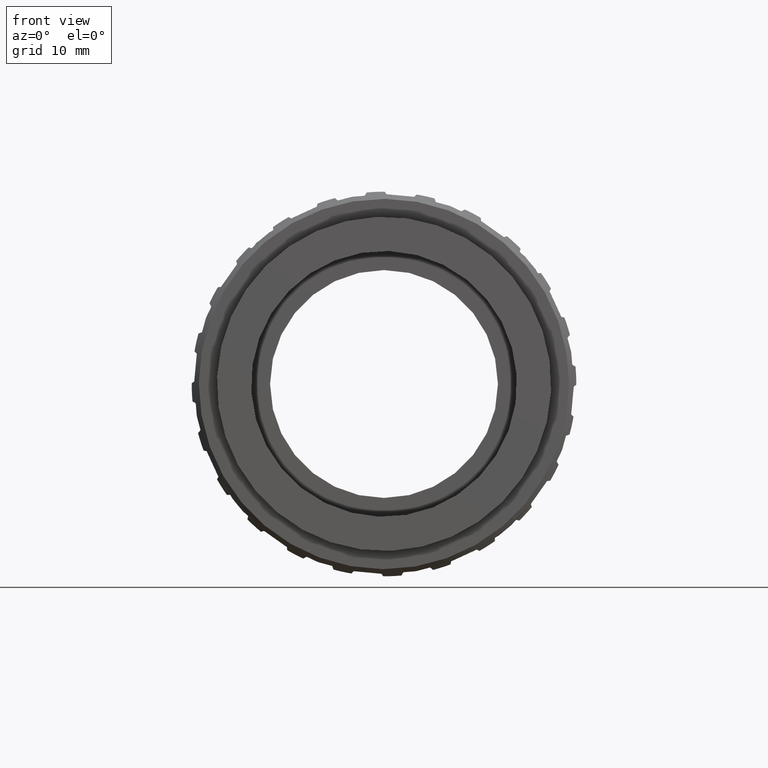
[diagram: clean part render]
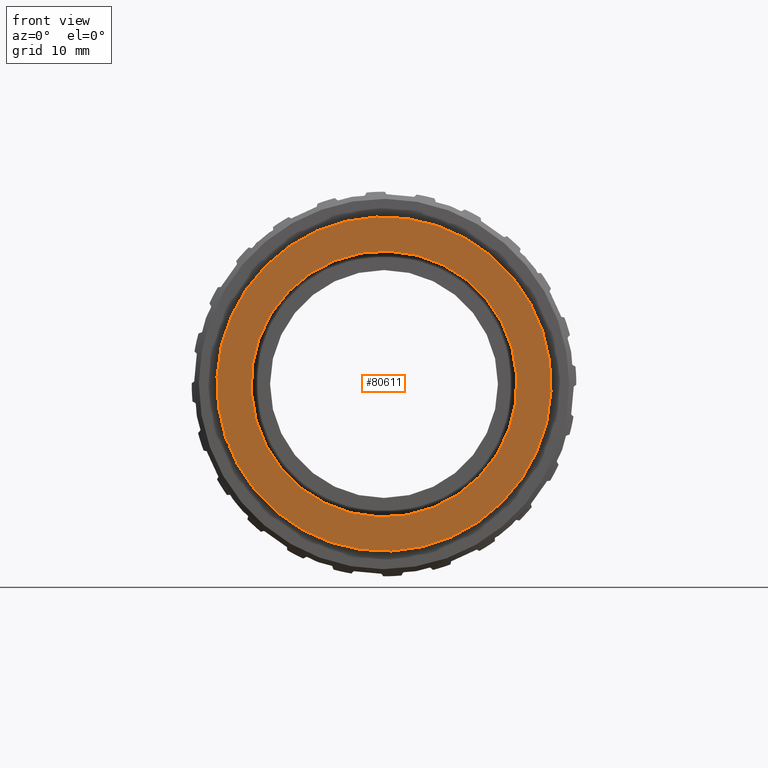
[diagram: same view with one face highlighted and labeled with its STEP entity id]
A machine part, front view. The second image highlights one B-rep face of the part: STEP entity #80611.
In plain terms, the highlighted planar face has unit normal (0, 1, 0).
Its self-contained STEP definition (entity closure, byte-faithful):
#1204 = AXIS2_PLACEMENT_3D ( 'NONE', #49712, #66918, #17881 ) ;
#3859 = CIRCLE ( 'NONE', #16191, 14.00000000000000500 ) ;
#4697 = FACE_BOUND ( 'NONE', #98621, .T. ) ;
#6945 = EDGE_CURVE ( 'NONE', #25935, #51218, #67545, .T. ) ;
#9484 = AXIS2_PLACEMENT_3D ( 'NONE', #94358, #26999, #9787 ) ;
#9787 = DIRECTION ( 'NONE',  ( 0.0000000000000000000, 0.0000000000000000000, 1.000000000000000000 ) ) ;
#10047 = CARTESIAN_POINT ( 'NONE',  ( 1.714505518806295000E-015, -14.79999999999999400, -14.00000000000000500 ) ) ;
#13860 = CARTESIAN_POINT ( 'NONE',  ( 0.0000000000000000000, -14.79999999999999400, 0.0000000000000000000 ) ) ;
#13930 = DIRECTION ( 'NONE',  ( -0.0000000000000000000, 1.000000000000000000, -0.0000000000000000000 ) ) ;
#14216 = DIRECTION ( 'NONE',  ( -0.0000000000000000000, 1.000000000000000000, -0.0000000000000000000 ) ) ;
#16191 = AXIS2_PLACEMENT_3D ( 'NONE', #67666, #51921, #18634 ) ;
#16437 = FACE_OUTER_BOUND ( 'NONE', #24139, .T. ) ;
#17290 = ORIENTED_EDGE ( 'NONE', *, *, #6945, .F. ) ;
#17881 = DIRECTION ( 'NONE',  ( 0.0000000000000000000, 0.0000000000000000000, 1.000000000000000000 ) ) ;
#18634 = DIRECTION ( 'NONE',  ( 0.0000000000000000000, 0.0000000000000000000, 1.000000000000000000 ) ) ;
#19513 = EDGE_CURVE ( 'NONE', #51218, #25935, #87207, .T. ) ;
#24139 = EDGE_LOOP ( 'NONE', ( #17290, #49946 ) ) ;
#24866 = PLANE ( 'NONE',  #1204 ) ;
#25935 = VERTEX_POINT ( 'NONE', #28997 ) ;
#26999 = DIRECTION ( 'NONE',  ( -0.0000000000000000000, 1.000000000000000000, -0.0000000000000000000 ) ) ;
#28997 = CARTESIAN_POINT ( 'NONE',  ( 0.0000000000000000000, -14.79999999999999400, 17.60000000000000900 ) ) ;
#30335 = DIRECTION ( 'NONE',  ( 0.0000000000000000000, 0.0000000000000000000, 1.000000000000000000 ) ) ;
#37103 = EDGE_CURVE ( 'NONE', #62797, #93663, #3859, .T. ) ;
#49712 = CARTESIAN_POINT ( 'NONE',  ( 14.00000000000000500, -14.79999999999999700, 0.0000000000000000000 ) ) ;
#49946 = ORIENTED_EDGE ( 'NONE', *, *, #19513, .F. ) ;
#50915 = CARTESIAN_POINT ( 'NONE',  ( 0.0000000000000000000, -14.79999999999999400, 14.00000000000000500 ) ) ;
#51218 = VERTEX_POINT ( 'NONE', #87852 ) ;
#51921 = DIRECTION ( 'NONE',  ( -0.0000000000000000000, 1.000000000000000000, -0.0000000000000000000 ) ) ;
#54881 = CIRCLE ( 'NONE', #68958, 14.00000000000000500 ) ;
#57079 = DIRECTION ( 'NONE',  ( 0.0000000000000000000, 0.0000000000000000000, 1.000000000000000000 ) ) ;
#62797 = VERTEX_POINT ( 'NONE', #50915 ) ;
#64227 = EDGE_CURVE ( 'NONE', #93663, #62797, #54881, .T. ) ;
#66918 = DIRECTION ( 'NONE',  ( -0.0000000000000000000, 1.000000000000000000, 0.0000000000000000000 ) ) ;
#67545 = CIRCLE ( 'NONE', #77740, 17.60000000000000900 ) ;
#67666 = CARTESIAN_POINT ( 'NONE',  ( 0.0000000000000000000, -14.79999999999999400, 0.0000000000000000000 ) ) ;
#68958 = AXIS2_PLACEMENT_3D ( 'NONE', #13860, #14216, #30335 ) ;
#77740 = AXIS2_PLACEMENT_3D ( 'NONE', #106125, #13930, #57079 ) ;
#80611 = ADVANCED_FACE ( 'NONE', ( #16437, #4697 ), #24866, .F. ) ;
#87207 = CIRCLE ( 'NONE', #9484, 17.60000000000000900 ) ;
#87852 = CARTESIAN_POINT ( 'NONE',  ( 2.155378366499342800E-015, -14.79999999999999400, -17.60000000000000900 ) ) ;
#89197 = ORIENTED_EDGE ( 'NONE', *, *, #37103, .T. ) ;
#89477 = ORIENTED_EDGE ( 'NONE', *, *, #64227, .T. ) ;
#93663 = VERTEX_POINT ( 'NONE', #10047 ) ;
#94358 = CARTESIAN_POINT ( 'NONE',  ( 0.0000000000000000000, -14.79999999999999400, 0.0000000000000000000 ) ) ;
#98621 = EDGE_LOOP ( 'NONE', ( #89197, #89477 ) ) ;
#106125 = CARTESIAN_POINT ( 'NONE',  ( 0.0000000000000000000, -14.79999999999999400, 0.0000000000000000000 ) ) ;